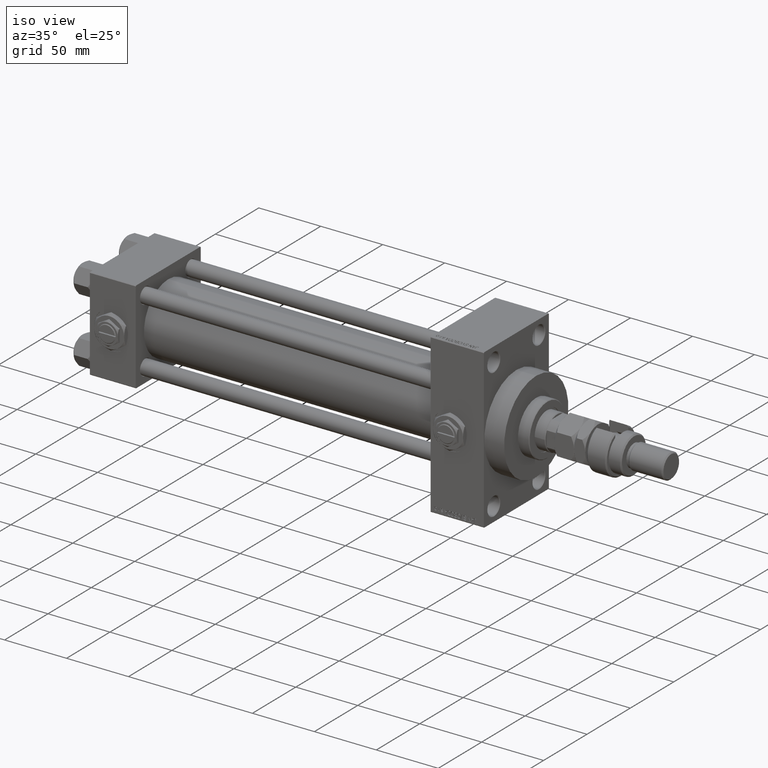
[diagram: clean part render]
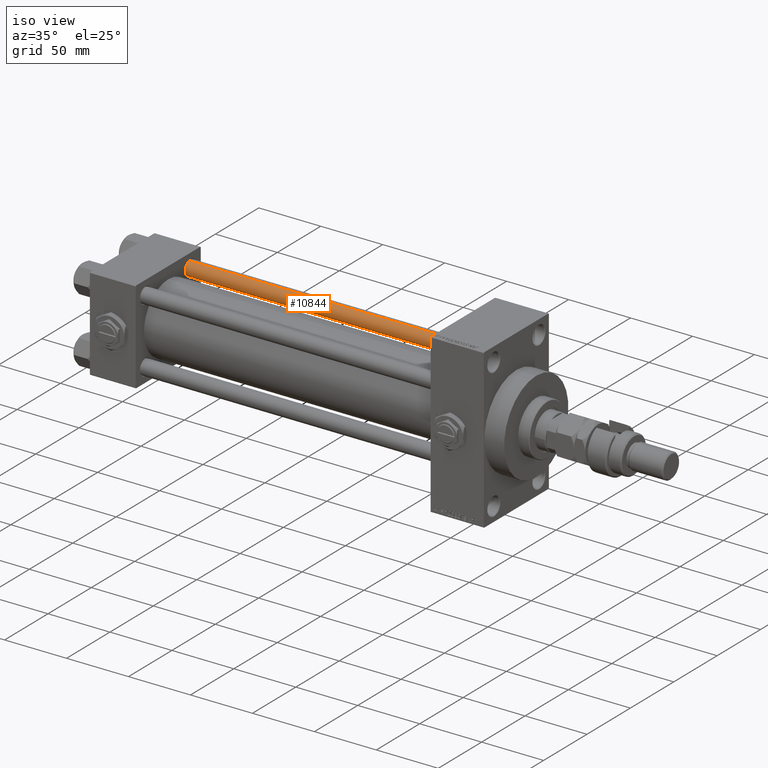
[diagram: same view with one face highlighted and labeled with its STEP entity id]
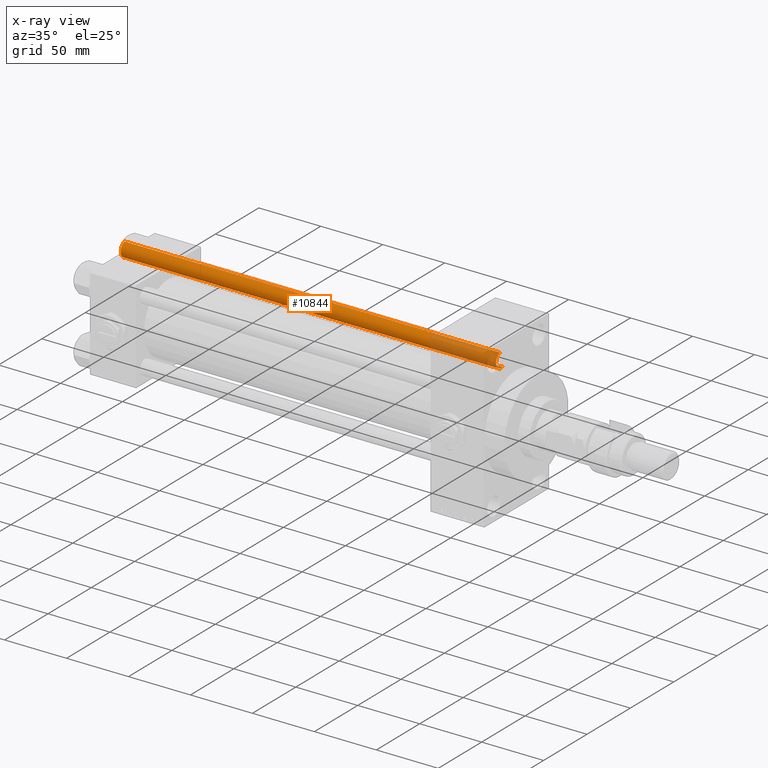
[diagram: x-ray of the same camera — body ghosted, the highlighted face saturated]
A machine part, iso view. The second image highlights one B-rep face of the part: STEP entity #10844.
The next image is the same camera in x-ray: the body ghosted, the highlighted face saturated — about 18% of this face is hidden behind the body in this view.
In plain terms, the highlighted cylindrical surface (edge-blend (fillet) strip) has radius 6 mm, axis along (-1, -0, 0).
Its self-contained STEP definition (entity closure, byte-faithful):
#211 = ORIENTED_EDGE ( 'NONE', *, *, #42955, .T. ) ;
#316 = DIRECTION ( 'NONE',  ( 0.000000000000000000, 0.000000000000000000, -1.000000000000000000 ) ) ;
#391 = ORIENTED_EDGE ( 'NONE', *, *, #26896, .T. ) ;
#3135 = AXIS2_PLACEMENT_3D ( 'NONE', #43586, #4033, #23270 ) ;
#4033 = DIRECTION ( 'NONE',  ( -0.000000000000000000, -0.000000000000000000, -1.000000000000000000 ) ) ;
#5239 = AXIS2_PLACEMENT_3D ( 'NONE', #5623, #13519, #29601 ) ;
#5623 = CARTESIAN_POINT ( 'NONE',  ( 0.000000000000000000, 0.000000000000000000, 0.4999999999999449329 ) ) ;
#6791 = ORIENTED_EDGE ( 'NONE', *, *, #29666, .T. ) ;
#7892 = VECTOR ( 'NONE', #8123, 1000.000000000000000 ) ;
#8123 = DIRECTION ( 'NONE',  ( -0.000000000000000000, -0.000000000000000000, -1.000000000000000000 ) ) ;
#10782 = AXIS2_PLACEMENT_3D ( 'NONE', #27983, #316, #20845 ) ;
#10844 = ADVANCED_FACE ( 'NONE', ( #16143 ), #27492, .T. ) ;
#13519 = DIRECTION ( 'NONE',  ( -0.000000000000000000, -0.000000000000000000, 1.000000000000000000 ) ) ;
#16143 = FACE_OUTER_BOUND ( 'NONE', #45624, .T. ) ;
#16677 = CIRCLE ( 'NONE', #10782, 6.000000000000000888 ) ;
#19026 = VERTEX_POINT ( 'NONE', #25665 ) ;
#20845 = DIRECTION ( 'NONE',  ( 1.000000000000000000, 0.000000000000000000, 0.000000000000000000 ) ) ;
#23270 = DIRECTION ( 'NONE',  ( -1.000000000000000000, 0.000000000000000000, 0.000000000000000000 ) ) ;
#24180 = CARTESIAN_POINT ( 'NONE',  ( -6.000000000000000888, 0.000000000000000000, 303.5000000000000000 ) ) ;
#25665 = CARTESIAN_POINT ( 'NONE',  ( 6.000000000000000888, 7.347880794884120722E-16, 303.5000000000000000 ) ) ;
#25912 = EDGE_CURVE ( 'NONE', #19026, #28632, #36621, .T. ) ;
#26896 = EDGE_CURVE ( 'NONE', #29769, #28632, #50683, .T. ) ;
#27492 = CYLINDRICAL_SURFACE ( 'NONE', #3135, 6.000000000000000888 ) ;
#27983 = CARTESIAN_POINT ( 'NONE',  ( 0.000000000000000000, 0.000000000000000000, 303.5000000000000000 ) ) ;
#28632 = VERTEX_POINT ( 'NONE', #32408 ) ;
#29601 = DIRECTION ( 'NONE',  ( 1.000000000000000000, 0.000000000000000000, 0.000000000000000000 ) ) ;
#29666 = EDGE_CURVE ( 'NONE', #30603, #29769, #44236, .T. ) ;
#29769 = VERTEX_POINT ( 'NONE', #45805 ) ;
#30603 = VERTEX_POINT ( 'NONE', #24180 ) ;
#32408 = CARTESIAN_POINT ( 'NONE',  ( 6.000000000000000888, 7.347880794884120722E-16, 0.4999999999999449329 ) ) ;
#36031 = CARTESIAN_POINT ( 'NONE',  ( -6.000000000000000888, 0.000000000000000000, 304.0000000000000000 ) ) ;
#36621 = LINE ( 'NONE', #48001, #45642 ) ;
#42955 = EDGE_CURVE ( 'NONE', #19026, #30603, #16677, .T. ) ;
#43532 = DIRECTION ( 'NONE',  ( -0.000000000000000000, -0.000000000000000000, -1.000000000000000000 ) ) ;
#43586 = CARTESIAN_POINT ( 'NONE',  ( 0.000000000000000000, 0.000000000000000000, 304.0000000000000000 ) ) ;
#44236 = LINE ( 'NONE', #36031, #7892 ) ;
#45624 = EDGE_LOOP ( 'NONE', ( #46387, #211, #6791, #391 ) ) ;
#45642 = VECTOR ( 'NONE', #43532, 1000.000000000000000 ) ;
#45805 = CARTESIAN_POINT ( 'NONE',  ( -6.000000000000000888, 0.000000000000000000, 0.4999999999999449329 ) ) ;
#46387 = ORIENTED_EDGE ( 'NONE', *, *, #25912, .F. ) ;
#48001 = CARTESIAN_POINT ( 'NONE',  ( 6.000000000000000888, 7.347880794884120722E-16, 304.0000000000000000 ) ) ;
#50683 = CIRCLE ( 'NONE', #5239, 6.000000000000000888 ) ;